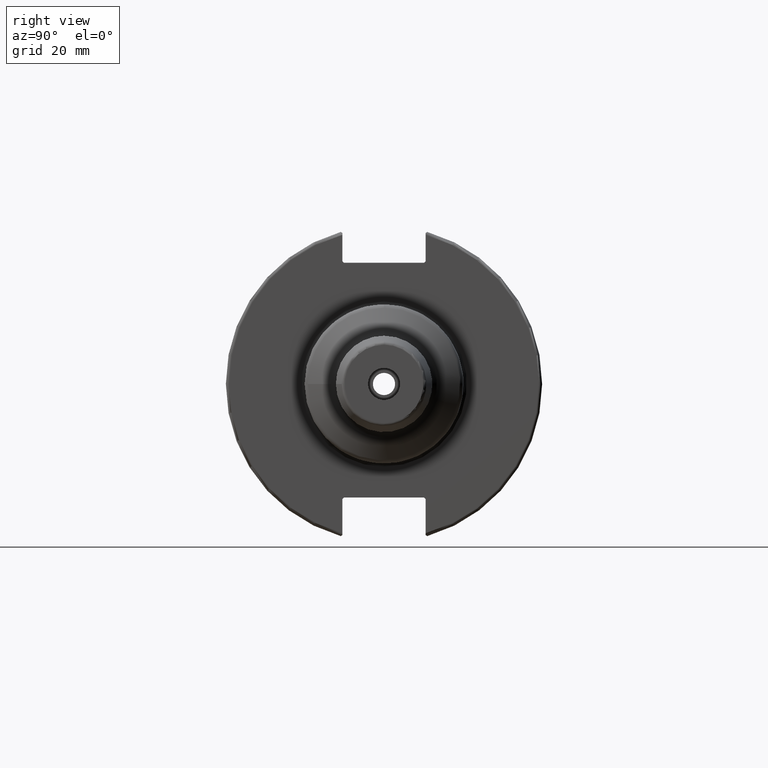
[diagram: clean part render]
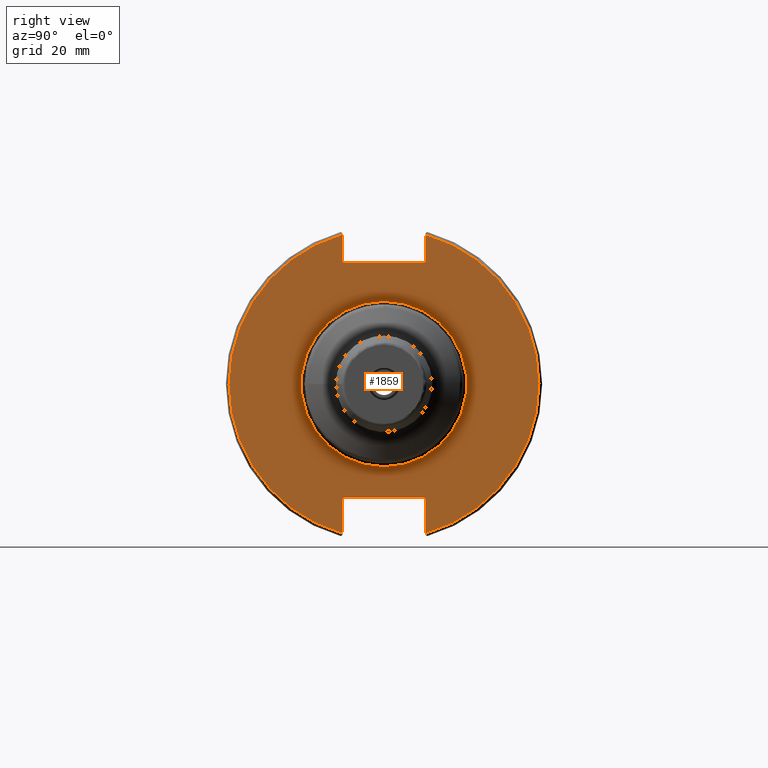
[diagram: same view with one face highlighted and labeled with its STEP entity id]
A machine part, right view. The second image highlights one B-rep face of the part: STEP entity #1859.
In plain terms, the highlighted planar face has unit normal (1, 0, 0).
Its self-contained STEP definition (entity closure, byte-faithful):
#33=PLANE('',#2053);
#91=FACE_BOUND('',#304,.T.);
#193=FACE_OUTER_BOUND('',#303,.T.);
#303=EDGE_LOOP('',(#1378,#1379,#1380,#1381,#1382,#1383,#1384,#1385,#1386,
#1387,#1388,#1389));
#304=EDGE_LOOP('',(#1390));
#418=LINE('',#3026,#522);
#419=LINE('',#3028,#523);
#420=LINE('',#3030,#524);
#421=LINE('',#3032,#525);
#422=LINE('',#3034,#526);
#423=LINE('',#3038,#527);
#424=LINE('',#3040,#528);
#425=LINE('',#3042,#529);
#426=LINE('',#3044,#530);
#427=LINE('',#3045,#531);
#522=VECTOR('',#2404,10.);
#523=VECTOR('',#2405,10.);
#524=VECTOR('',#2406,10.);
#525=VECTOR('',#2407,10.);
#526=VECTOR('',#2408,10.);
#527=VECTOR('',#2411,10.);
#528=VECTOR('',#2412,10.);
#529=VECTOR('',#2413,10.);
#530=VECTOR('',#2414,10.);
#531=VECTOR('',#2415,10.);
#672=CIRCLE('',#2052,25.75);
#673=CIRCLE('',#2054,48.2125);
#674=CIRCLE('',#2055,48.2125);
#794=VERTEX_POINT('',#3018);
#795=VERTEX_POINT('',#3022);
#796=VERTEX_POINT('',#3023);
#797=VERTEX_POINT('',#3025);
#798=VERTEX_POINT('',#3027);
#799=VERTEX_POINT('',#3029);
#800=VERTEX_POINT('',#3031);
#801=VERTEX_POINT('',#3033);
#802=VERTEX_POINT('',#3035);
#803=VERTEX_POINT('',#3037);
#804=VERTEX_POINT('',#3039);
#805=VERTEX_POINT('',#3041);
#806=VERTEX_POINT('',#3043);
#1014=EDGE_CURVE('',#794,#794,#672,.T.);
#1015=EDGE_CURVE('',#795,#796,#673,.T.);
#1016=EDGE_CURVE('',#795,#797,#418,.T.);
#1017=EDGE_CURVE('',#798,#797,#419,.T.);
#1018=EDGE_CURVE('',#798,#799,#420,.T.);
#1019=EDGE_CURVE('',#800,#799,#421,.T.);
#1020=EDGE_CURVE('',#800,#801,#422,.T.);
#1021=EDGE_CURVE('',#802,#801,#674,.T.);
#1022=EDGE_CURVE('',#802,#803,#423,.T.);
#1023=EDGE_CURVE('',#804,#803,#424,.T.);
#1024=EDGE_CURVE('',#804,#805,#425,.T.);
#1025=EDGE_CURVE('',#806,#805,#426,.T.);
#1026=EDGE_CURVE('',#806,#796,#427,.T.);
#1378=ORIENTED_EDGE('',*,*,#1015,.F.);
#1379=ORIENTED_EDGE('',*,*,#1016,.T.);
#1380=ORIENTED_EDGE('',*,*,#1017,.F.);
#1381=ORIENTED_EDGE('',*,*,#1018,.T.);
#1382=ORIENTED_EDGE('',*,*,#1019,.F.);
#1383=ORIENTED_EDGE('',*,*,#1020,.T.);
#1384=ORIENTED_EDGE('',*,*,#1021,.F.);
#1385=ORIENTED_EDGE('',*,*,#1022,.T.);
#1386=ORIENTED_EDGE('',*,*,#1023,.F.);
#1387=ORIENTED_EDGE('',*,*,#1024,.T.);
#1388=ORIENTED_EDGE('',*,*,#1025,.F.);
#1389=ORIENTED_EDGE('',*,*,#1026,.T.);
#1390=ORIENTED_EDGE('',*,*,#1014,.F.);
#1859=ADVANCED_FACE('',(#193,#91),#33,.T.);
#2052=AXIS2_PLACEMENT_3D('',#3020,#2398,#2399);
#2053=AXIS2_PLACEMENT_3D('',#3021,#2400,#2401);
#2054=AXIS2_PLACEMENT_3D('',#3024,#2402,#2403);
#2055=AXIS2_PLACEMENT_3D('',#3036,#2409,#2410);
#2398=DIRECTION('center_axis',(1.,0.,0.));
#2399=DIRECTION('ref_axis',(0.,-1.,-1.22464679914735E-16));
#2400=DIRECTION('center_axis',(1.,0.,0.));
#2401=DIRECTION('ref_axis',(0.,0.,-1.));
#2402=DIRECTION('center_axis',(-1.,0.,0.));
#2403=DIRECTION('ref_axis',(0.,1.,-6.12323399573677E-17));
#2404=DIRECTION('',(0.,0.,-1.));
#2405=DIRECTION('',(0.,0.707106781186549,0.707106781186546));
#2406=DIRECTION('',(0.,-1.,0.));
#2407=DIRECTION('',(0.,0.707106781186549,-0.707106781186546));
#2408=DIRECTION('',(0.,0.,1.));
#2409=DIRECTION('center_axis',(-1.,0.,0.));
#2410=DIRECTION('ref_axis',(0.,-1.,1.60812264967664E-16));
#2411=DIRECTION('',(0.,0.,1.));
#2412=DIRECTION('',(0.,-0.707106781186549,-0.707106781186546));
#2413=DIRECTION('',(0.,1.,0.));
#2414=DIRECTION('',(0.,-0.707106781186549,0.707106781186546));
#2415=DIRECTION('',(0.,0.,-1.));
#3018=CARTESIAN_POINT('',(19.05,-3.15346550780443E-15,-25.75));
#3020=CARTESIAN_POINT('Origin',(19.05,0.,0.));
#3021=CARTESIAN_POINT('Origin',(19.05,0.,0.));
#3022=CARTESIAN_POINT('',(19.05,12.95,46.4407434937254));
#3023=CARTESIAN_POINT('',(19.05,12.95,-46.4407434937254));
#3024=CARTESIAN_POINT('Origin',(19.05,0.,0.));
#3025=CARTESIAN_POINT('',(19.05,12.95,38.219));
#3026=CARTESIAN_POINT('',(19.05,12.95,18.8595));
#3027=CARTESIAN_POINT('',(19.05,12.45,37.719));
#3028=CARTESIAN_POINT('',(19.05,0.0327499999999836,25.30175));
#3029=CARTESIAN_POINT('',(19.05,-12.45,37.719));
#3030=CARTESIAN_POINT('',(19.05,0.,37.719));
#3031=CARTESIAN_POINT('',(19.05,-12.95,38.219));
#3032=CARTESIAN_POINT('',(19.05,-0.0327499999999817,25.30175));
#3033=CARTESIAN_POINT('',(19.05,-12.95,46.4407434937254));
#3034=CARTESIAN_POINT('',(19.05,-12.95,18.8595));
#3035=CARTESIAN_POINT('',(19.05,-12.95,-46.4407434937254));
#3036=CARTESIAN_POINT('Origin',(19.05,0.,0.));
#3037=CARTESIAN_POINT('',(19.05,-12.95,-35.806));
#3038=CARTESIAN_POINT('',(19.05,-12.95,-17.653));
#3039=CARTESIAN_POINT('',(19.05,-12.45,-35.306));
#3040=CARTESIAN_POINT('',(19.05,-0.635999999999989,-23.492));
#3041=CARTESIAN_POINT('',(19.05,12.45,-35.306));
#3042=CARTESIAN_POINT('',(19.05,-3.33066907387547E-15,-35.306));
#3043=CARTESIAN_POINT('',(19.05,12.95,-35.806));
#3044=CARTESIAN_POINT('',(19.05,0.635999999999982,-23.492));
#3045=CARTESIAN_POINT('',(19.05,12.95,-17.653));